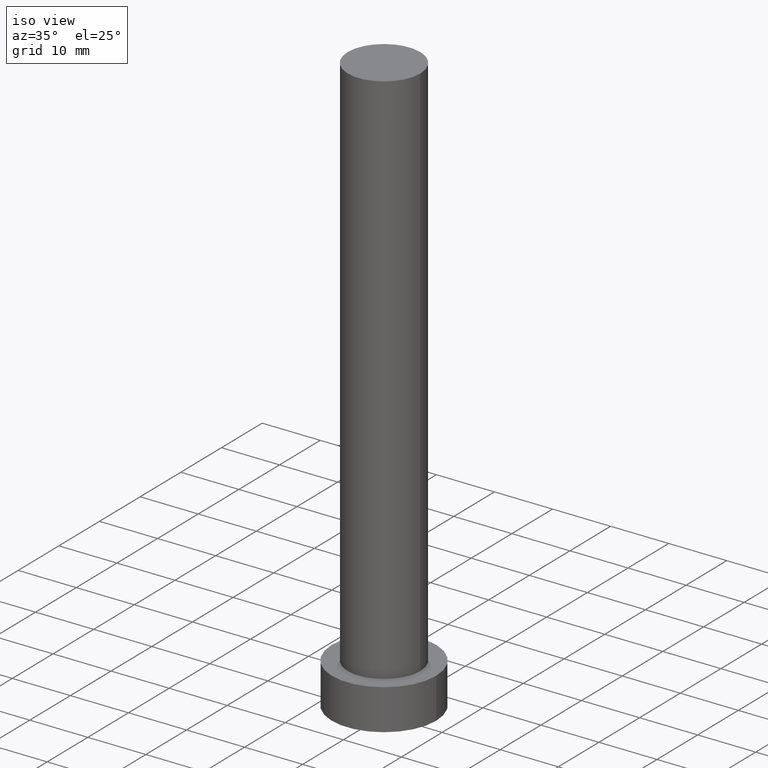
[diagram: clean part render]
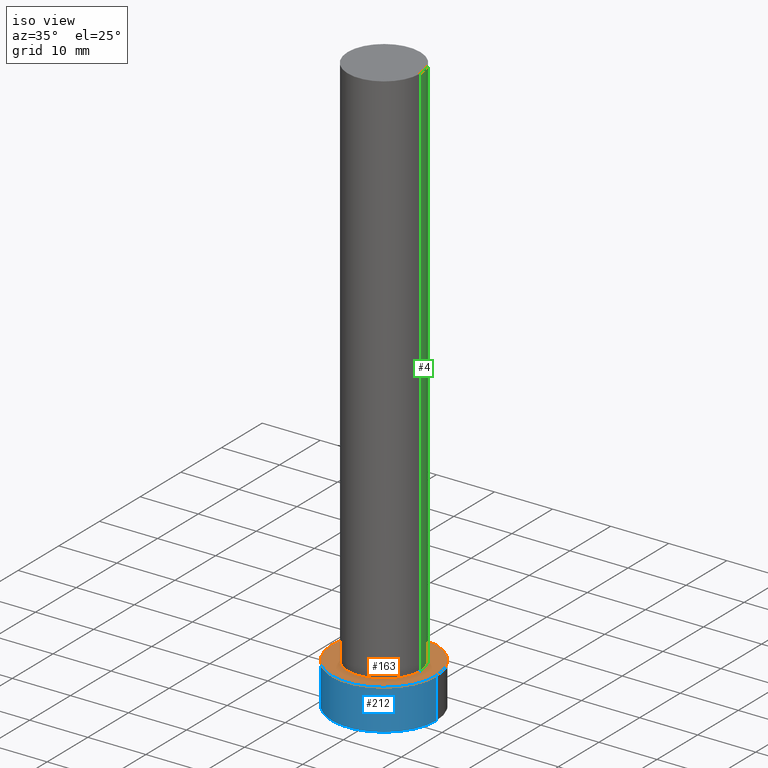
[diagram: same view with three faces highlighted in distinct colors, each labeled with its STEP entity id]
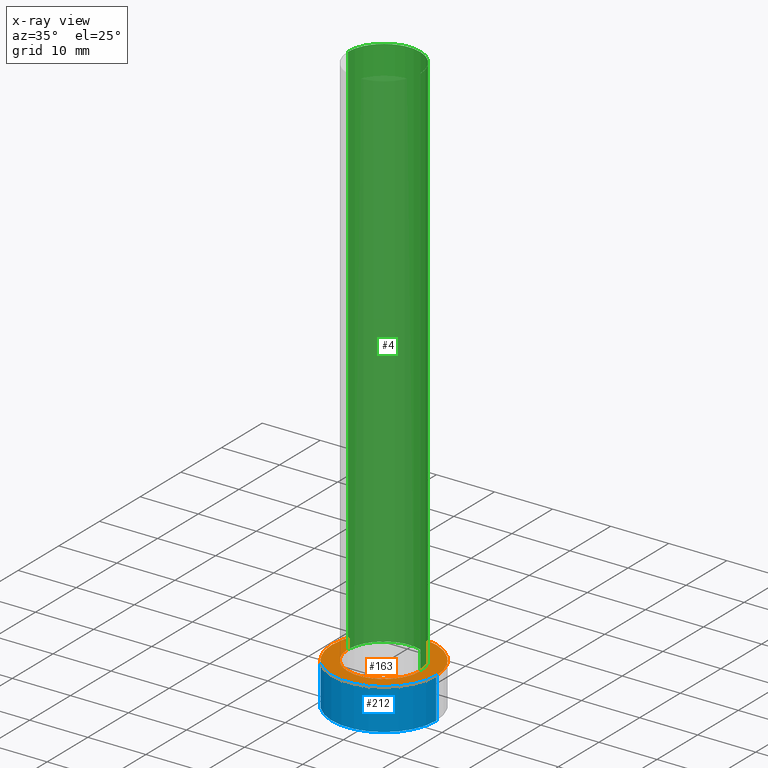
[diagram: x-ray of the same camera — body ghosted, the three highlighted faces saturated]
A machine part, iso view with three faces highlighted in distinct colors.
The next image is the same camera in x-ray (body ghosted, the three faces saturated) — at least one of them is partly hidden behind the body in this view.
Their STEP definitions:

[orange] entity #163 — the highlighted planar face has unit normal (0, 0, 1).
#1 = CIRCLE ( 'NONE', #36, 6.250000000000000000 ) ;
#3 = EDGE_LOOP ( 'NONE', ( #35, #137 ) ) ;
#5 = FACE_OUTER_BOUND ( 'NONE', #214, .T. ) ;
#11 = VERTEX_POINT ( 'NONE', #142 ) ;
#15 = CARTESIAN_POINT ( 'NONE',  ( 0.000000000000000000, 0.000000000000000000, 7.000000000000000000 ) ) ;
#19 = EDGE_CURVE ( 'NONE', #201, #11, #144, .T. ) ;
#22 = AXIS2_PLACEMENT_3D ( 'NONE', #197, #27, #121 ) ;
#24 = DIRECTION ( 'NONE',  ( 1.000000000000000000, 0.000000000000000000, -0.000000000000000000 ) ) ;
#27 = DIRECTION ( 'NONE',  ( 0.000000000000000000, 0.000000000000000000, 1.000000000000000000 ) ) ;
#31 = CARTESIAN_POINT ( 'NONE',  ( 6.250000000000000000, 7.654042494670955634E-16, 7.000000000000000000 ) ) ;
#35 = ORIENTED_EDGE ( 'NONE', *, *, #153, .F. ) ;
#36 = AXIS2_PLACEMENT_3D ( 'NONE', #132, #123, #92 ) ;
#38 = VERTEX_POINT ( 'NONE', #31 ) ;
#54 = ORIENTED_EDGE ( 'NONE', *, *, #19, .T. ) ;
#56 = CARTESIAN_POINT ( 'NONE',  ( 9.000000000000000000, 1.102182119232617714E-15, 7.000000000000000000 ) ) ;
#71 = DIRECTION ( 'NONE',  ( 0.000000000000000000, 0.000000000000000000, 1.000000000000000000 ) ) ;
#92 = DIRECTION ( 'NONE',  ( 1.000000000000000000, 0.000000000000000000, 0.000000000000000000 ) ) ;
#110 = CARTESIAN_POINT ( 'NONE',  ( 0.000000000000000000, 0.000000000000000000, 7.000000000000000000 ) ) ;
#121 = DIRECTION ( 'NONE',  ( 1.000000000000000000, 0.000000000000000000, 0.000000000000000000 ) ) ;
#123 = DIRECTION ( 'NONE',  ( 0.000000000000000000, 0.000000000000000000, 1.000000000000000000 ) ) ;
#125 = DIRECTION ( 'NONE',  ( 0.000000000000000000, 0.000000000000000000, 1.000000000000000000 ) ) ;
#130 = DIRECTION ( 'NONE',  ( 1.000000000000000000, 0.000000000000000000, 0.000000000000000000 ) ) ;
#132 = CARTESIAN_POINT ( 'NONE',  ( 0.000000000000000000, 0.000000000000000000, 7.000000000000000000 ) ) ;
#137 = ORIENTED_EDGE ( 'NONE', *, *, #169, .F. ) ;
#138 = AXIS2_PLACEMENT_3D ( 'NONE', #110, #71, #130 ) ;
#142 = CARTESIAN_POINT ( 'NONE',  ( -9.000000000000000000, 0.000000000000000000, 7.000000000000000000 ) ) ;
#144 = CIRCLE ( 'NONE', #22, 9.000000000000000000 ) ;
#149 = CIRCLE ( 'NONE', #138, 6.250000000000000000 ) ;
#153 = EDGE_CURVE ( 'NONE', #168, #38, #1, .T. ) ;
#163 = ADVANCED_FACE ( 'NONE', ( #246, #5 ), #188, .T. ) ;
#168 = VERTEX_POINT ( 'NONE', #223 ) ;
#169 = EDGE_CURVE ( 'NONE', #38, #168, #149, .T. ) ;
#182 = EDGE_CURVE ( 'NONE', #11, #201, #203, .T. ) ;
#183 = AXIS2_PLACEMENT_3D ( 'NONE', #15, #187, #190 ) ;
#187 = DIRECTION ( 'NONE',  ( 0.000000000000000000, 0.000000000000000000, 1.000000000000000000 ) ) ;
#188 = PLANE ( 'NONE',  #225 ) ;
#190 = DIRECTION ( 'NONE',  ( 1.000000000000000000, 0.000000000000000000, 0.000000000000000000 ) ) ;
#197 = CARTESIAN_POINT ( 'NONE',  ( 0.000000000000000000, 0.000000000000000000, 7.000000000000000000 ) ) ;
#201 = VERTEX_POINT ( 'NONE', #56 ) ;
#202 = CARTESIAN_POINT ( 'NONE',  ( 0.000000000000000000, 0.000000000000000000, 7.000000000000000000 ) ) ;
#203 = CIRCLE ( 'NONE', #183, 9.000000000000000000 ) ;
#214 = EDGE_LOOP ( 'NONE', ( #222, #54 ) ) ;
#222 = ORIENTED_EDGE ( 'NONE', *, *, #182, .T. ) ;
#223 = CARTESIAN_POINT ( 'NONE',  ( -6.250000000000000000, 0.000000000000000000, 7.000000000000000000 ) ) ;
#225 = AXIS2_PLACEMENT_3D ( 'NONE', #202, #125, #24 ) ;
#246 = FACE_BOUND ( 'NONE', #3, .T. ) ;

[blue] entity #212 — the highlighted cylindrical surface (partial cylindrical patch) has radius 9 mm, axis along (-0, -0, -1).
#11 = VERTEX_POINT ( 'NONE', #142 ) ;
#15 = CARTESIAN_POINT ( 'NONE',  ( 0.000000000000000000, 0.000000000000000000, 7.000000000000000000 ) ) ;
#18 = CYLINDRICAL_SURFACE ( 'NONE', #50, 9.000000000000000000 ) ;
#23 = DIRECTION ( 'NONE',  ( -0.000000000000000000, -0.000000000000000000, -1.000000000000000000 ) ) ;
#25 = CARTESIAN_POINT ( 'NONE',  ( 0.000000000000000000, 0.000000000000000000, 0.000000000000000000 ) ) ;
#28 = EDGE_CURVE ( 'NONE', #78, #221, #176, .T. ) ;
#40 = ORIENTED_EDGE ( 'NONE', *, *, #230, .F. ) ;
#43 = VECTOR ( 'NONE', #64, 1000.000000000000000 ) ;
#50 = AXIS2_PLACEMENT_3D ( 'NONE', #96, #160, #105 ) ;
#56 = CARTESIAN_POINT ( 'NONE',  ( 9.000000000000000000, 1.102182119232617714E-15, 7.000000000000000000 ) ) ;
#64 = DIRECTION ( 'NONE',  ( -0.000000000000000000, -0.000000000000000000, -1.000000000000000000 ) ) ;
#73 = ORIENTED_EDGE ( 'NONE', *, *, #28, .T. ) ;
#75 = AXIS2_PLACEMENT_3D ( 'NONE', #25, #181, #241 ) ;
#78 = VERTEX_POINT ( 'NONE', #208 ) ;
#84 = FACE_OUTER_BOUND ( 'NONE', #91, .T. ) ;
#89 = VECTOR ( 'NONE', #23, 1000.000000000000000 ) ;
#91 = EDGE_LOOP ( 'NONE', ( #40, #164, #166, #73 ) ) ;
#96 = CARTESIAN_POINT ( 'NONE',  ( 0.000000000000000000, 0.000000000000000000, 7.000000000000000000 ) ) ;
#105 = DIRECTION ( 'NONE',  ( -1.000000000000000000, 0.000000000000000000, 0.000000000000000000 ) ) ;
#133 = CARTESIAN_POINT ( 'NONE',  ( -9.000000000000000000, 0.000000000000000000, 7.000000000000000000 ) ) ;
#142 = CARTESIAN_POINT ( 'NONE',  ( -9.000000000000000000, 0.000000000000000000, 7.000000000000000000 ) ) ;
#160 = DIRECTION ( 'NONE',  ( -0.000000000000000000, -0.000000000000000000, -1.000000000000000000 ) ) ;
#164 = ORIENTED_EDGE ( 'NONE', *, *, #182, .F. ) ;
#166 = ORIENTED_EDGE ( 'NONE', *, *, #198, .T. ) ;
#167 = CARTESIAN_POINT ( 'NONE',  ( 9.000000000000000000, 1.102182119232617714E-15, 7.000000000000000000 ) ) ;
#176 = CIRCLE ( 'NONE', #75, 9.000000000000000000 ) ;
#181 = DIRECTION ( 'NONE',  ( 0.000000000000000000, 0.000000000000000000, 1.000000000000000000 ) ) ;
#182 = EDGE_CURVE ( 'NONE', #11, #201, #203, .T. ) ;
#183 = AXIS2_PLACEMENT_3D ( 'NONE', #15, #187, #190 ) ;
#187 = DIRECTION ( 'NONE',  ( 0.000000000000000000, 0.000000000000000000, 1.000000000000000000 ) ) ;
#190 = DIRECTION ( 'NONE',  ( 1.000000000000000000, 0.000000000000000000, 0.000000000000000000 ) ) ;
#198 = EDGE_CURVE ( 'NONE', #11, #78, #253, .T. ) ;
#201 = VERTEX_POINT ( 'NONE', #56 ) ;
#203 = CIRCLE ( 'NONE', #183, 9.000000000000000000 ) ;
#208 = CARTESIAN_POINT ( 'NONE',  ( -9.000000000000000000, 0.000000000000000000, 0.000000000000000000 ) ) ;
#209 = CARTESIAN_POINT ( 'NONE',  ( 9.000000000000000000, 1.102182119232617714E-15, 0.000000000000000000 ) ) ;
#212 = ADVANCED_FACE ( 'NONE', ( #84 ), #18, .T. ) ;
#221 = VERTEX_POINT ( 'NONE', #209 ) ;
#230 = EDGE_CURVE ( 'NONE', #201, #221, #254, .T. ) ;
#241 = DIRECTION ( 'NONE',  ( 1.000000000000000000, 0.000000000000000000, 0.000000000000000000 ) ) ;
#253 = LINE ( 'NONE', #133, #89 ) ;
#254 = LINE ( 'NONE', #167, #43 ) ;

[green] entity #4 — the highlighted cylindrical surface (partial cylindrical patch) has radius 6.25 mm, axis along (-0, -0, -1).
#2 = CARTESIAN_POINT ( 'NONE',  ( 0.000000000000000000, 0.000000000000000000, 100.0000000000000000 ) ) ;
#4 = ADVANCED_FACE ( 'NONE', ( #157 ), #234, .T. ) ;
#30 = ORIENTED_EDGE ( 'NONE', *, *, #139, .F. ) ;
#31 = CARTESIAN_POINT ( 'NONE',  ( 6.250000000000000000, 7.654042494670955634E-16, 7.000000000000000000 ) ) ;
#33 = VERTEX_POINT ( 'NONE', #53 ) ;
#34 = CARTESIAN_POINT ( 'NONE',  ( 6.250000000000000000, 7.654042494670955634E-16, 100.0000000000000000 ) ) ;
#38 = VERTEX_POINT ( 'NONE', #31 ) ;
#53 = CARTESIAN_POINT ( 'NONE',  ( -6.250000000000000000, 0.000000000000000000, 100.0000000000000000 ) ) ;
#55 = VERTEX_POINT ( 'NONE', #34 ) ;
#62 = DIRECTION ( 'NONE',  ( -0.000000000000000000, -0.000000000000000000, -1.000000000000000000 ) ) ;
#69 = EDGE_LOOP ( 'NONE', ( #30, #205, #178, #185 ) ) ;
#71 = DIRECTION ( 'NONE',  ( 0.000000000000000000, 0.000000000000000000, 1.000000000000000000 ) ) ;
#81 = EDGE_CURVE ( 'NONE', #55, #38, #191, .T. ) ;
#87 = AXIS2_PLACEMENT_3D ( 'NONE', #244, #186, #224 ) ;
#106 = AXIS2_PLACEMENT_3D ( 'NONE', #2, #62, #154 ) ;
#110 = CARTESIAN_POINT ( 'NONE',  ( 0.000000000000000000, 0.000000000000000000, 7.000000000000000000 ) ) ;
#112 = CARTESIAN_POINT ( 'NONE',  ( -6.250000000000000000, 0.000000000000000000, 100.0000000000000000 ) ) ;
#130 = DIRECTION ( 'NONE',  ( 1.000000000000000000, 0.000000000000000000, 0.000000000000000000 ) ) ;
#138 = AXIS2_PLACEMENT_3D ( 'NONE', #110, #71, #130 ) ;
#139 = EDGE_CURVE ( 'NONE', #55, #33, #229, .T. ) ;
#143 = EDGE_CURVE ( 'NONE', #33, #168, #151, .T. ) ;
#149 = CIRCLE ( 'NONE', #138, 6.250000000000000000 ) ;
#151 = LINE ( 'NONE', #112, #199 ) ;
#154 = DIRECTION ( 'NONE',  ( -1.000000000000000000, 0.000000000000000000, 0.000000000000000000 ) ) ;
#157 = FACE_OUTER_BOUND ( 'NONE', #69, .T. ) ;
#168 = VERTEX_POINT ( 'NONE', #223 ) ;
#169 = EDGE_CURVE ( 'NONE', #38, #168, #149, .T. ) ;
#178 = ORIENTED_EDGE ( 'NONE', *, *, #169, .T. ) ;
#185 = ORIENTED_EDGE ( 'NONE', *, *, #143, .F. ) ;
#186 = DIRECTION ( 'NONE',  ( 0.000000000000000000, 0.000000000000000000, 1.000000000000000000 ) ) ;
#191 = LINE ( 'NONE', #251, #210 ) ;
#199 = VECTOR ( 'NONE', #226, 1000.000000000000000 ) ;
#205 = ORIENTED_EDGE ( 'NONE', *, *, #81, .T. ) ;
#210 = VECTOR ( 'NONE', #249, 1000.000000000000000 ) ;
#223 = CARTESIAN_POINT ( 'NONE',  ( -6.250000000000000000, 0.000000000000000000, 7.000000000000000000 ) ) ;
#224 = DIRECTION ( 'NONE',  ( 1.000000000000000000, 0.000000000000000000, 0.000000000000000000 ) ) ;
#226 = DIRECTION ( 'NONE',  ( -0.000000000000000000, -0.000000000000000000, -1.000000000000000000 ) ) ;
#229 = CIRCLE ( 'NONE', #87, 6.250000000000000000 ) ;
#234 = CYLINDRICAL_SURFACE ( 'NONE', #106, 6.250000000000000000 ) ;
#244 = CARTESIAN_POINT ( 'NONE',  ( 0.000000000000000000, 0.000000000000000000, 100.0000000000000000 ) ) ;
#249 = DIRECTION ( 'NONE',  ( -0.000000000000000000, -0.000000000000000000, -1.000000000000000000 ) ) ;
#251 = CARTESIAN_POINT ( 'NONE',  ( 6.250000000000000000, 7.654042494670955634E-16, 100.0000000000000000 ) ) ;